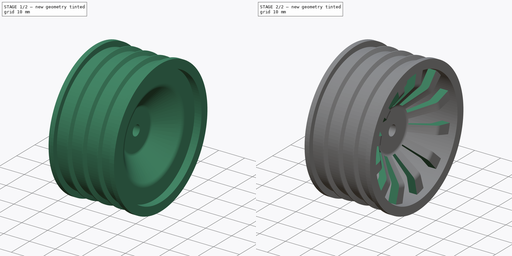
[diagram: build sequence overview — one tinted view per stage of 2, left to right]
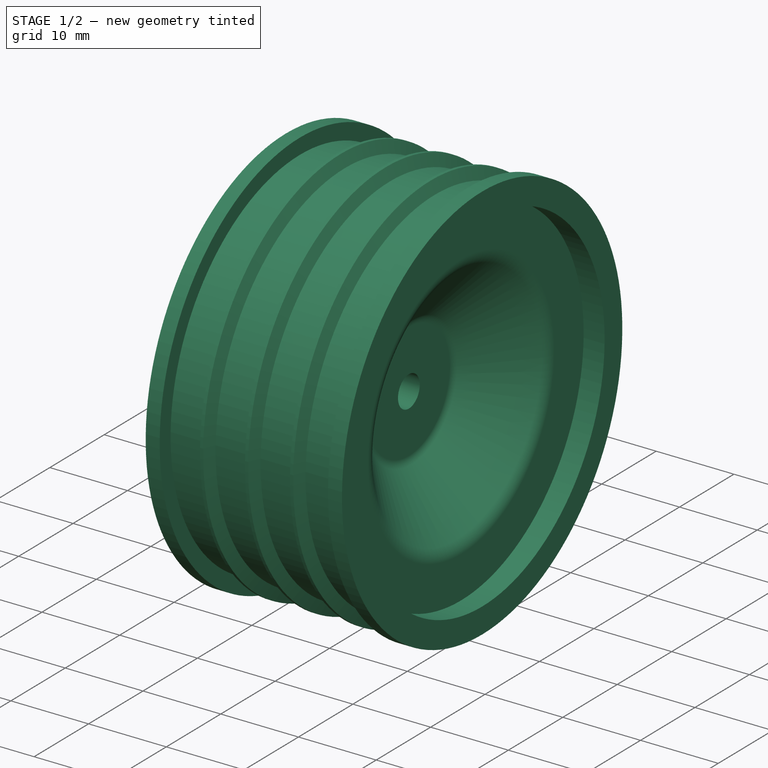
[diagram: stage 1 of 2 — iso view after this stage's code; geometry added in this stage tinted green]
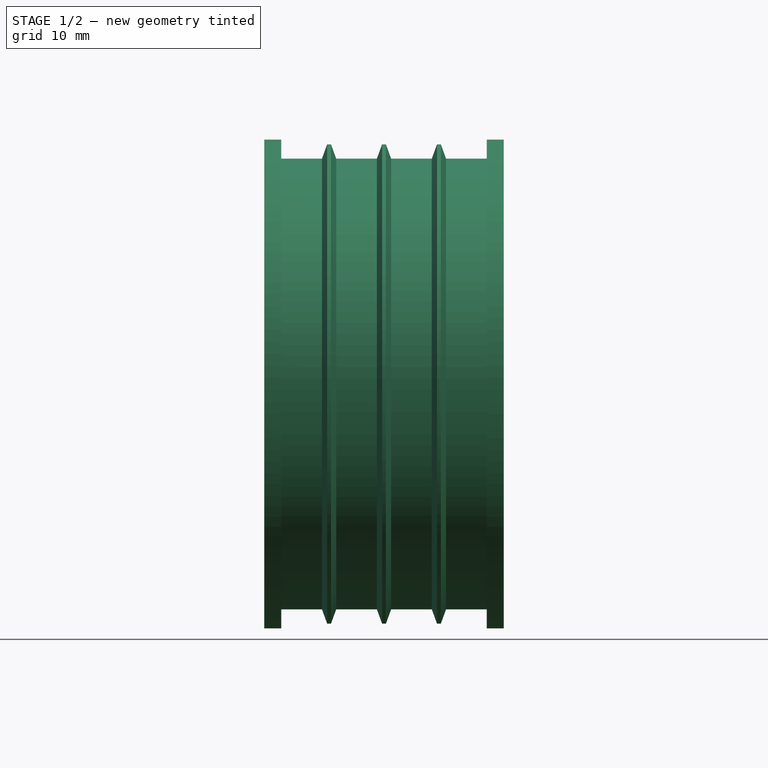
[diagram: stage 1 of 2 — front view after this stage's code; geometry added in this stage tinted green]
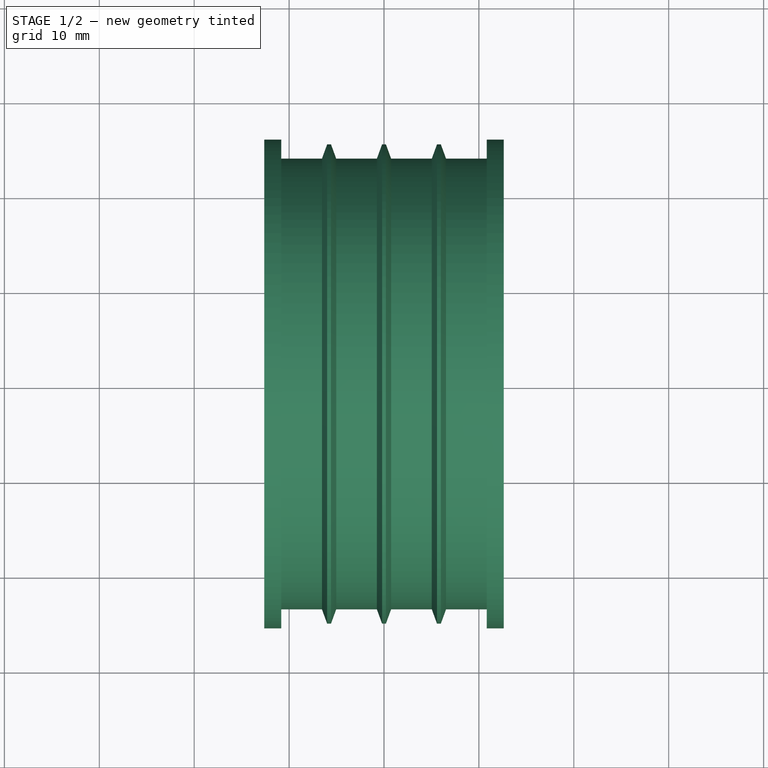
[diagram: stage 1 of 2 — top view after this stage's code; geometry added in this stage tinted green]
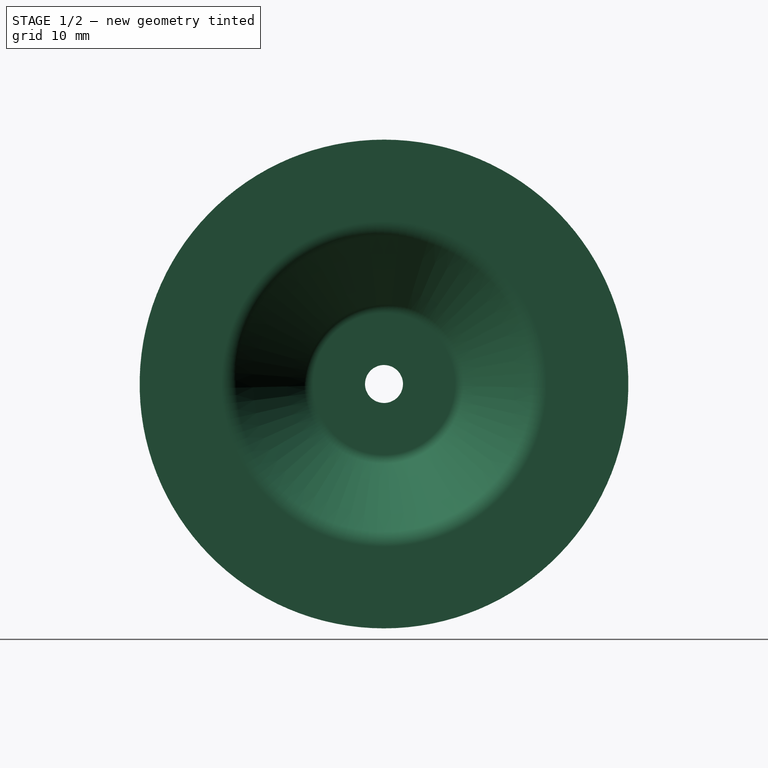
[diagram: stage 1 of 2 — right view after this stage's code; geometry added in this stage tinted green]
FCSTD DOCUMENT  (FreeCAD 1.0R39109 (Git))
Label: ring
License: All rights reserved
LicenseURL: http://en.wikipedia.org/wiki/All_rights_reserved
objects: Sketcher::SketchObject×3, PartDesign::Pocket×2, PartDesign::Revolution×1, PartDesign::PolarPattern×1, PartDesign::Body×1
note: 18 computed .brp shape members not serialized (recipe doc carries the construction recipe); baked Part::Feature solids carry a one-line shape summary decoded from their .brp

FEATURE [Sketcher::SketchObject] Sketch
  ArcFitTolerance = 1e-06
  AttachmentSupport = -> [XZ_Plane]
  FullyConstrained = true
  MakeInternals = false
  MapMode = 5
  Placement = pos=(0,0,0) rot=(1,0,0;1.5708rad)
  sketch-geometry (41):
    g0: LineSegment StartX=-3.2 StartY=8 StartZ=0 EndX=0.8 EndY=8 EndZ=0
    g1: LineSegment StartX=2.06158 StartY=8.68857 StartZ=0 EndX=6.52763 EndY=15.6322 EndZ=0
    g2: LineSegment StartX=6.925 StartY=16.9846 StartZ=0 EndX=6.925 EndY=22.5 EndZ=0
    g3: LineSegment StartX=6.925 StartY=22.5 StartZ=0 EndX=-12.625 EndY=22.5 EndZ=0
    g4: LineSegment StartX=-12.625 StartY=22.5 StartZ=0 EndX=-12.625 EndY=25.75 EndZ=0
    g5: LineSegment StartX=-12.625 StartY=25.75 StartZ=0 EndX=-10.825 EndY=25.75 EndZ=0
    g6: LineSegment StartX=-10.825 StartY=25.75 StartZ=0 EndX=-10.825 EndY=23.75 EndZ=0
    g7: LineSegment StartX=-10.825 StartY=23.75 StartZ=0 EndX=-6.5375 EndY=23.75 EndZ=0
    g8: LineSegment StartX=-6.5375 StartY=23.75 StartZ=0 EndX=-5.99154 EndY=25.25 EndZ=0
    g9: LineSegment StartX=-5.99154 StartY=25.25 StartZ=0 EndX=-5.58346 EndY=25.25 EndZ=0
    g10: LineSegment StartX=-5.58346 StartY=25.25 StartZ=0 EndX=-5.0375 EndY=23.75 EndZ=0
    g11: LineSegment StartX=-5.0375 StartY=23.75 StartZ=0 EndX=-0.75 EndY=23.75 EndZ=0
    g12: LineSegment StartX=-0.75 StartY=23.75 StartZ=0 EndX=-0.204045 EndY=25.25 EndZ=0
    g13: LineSegment StartX=-0.204045 StartY=25.25 StartZ=0 EndX=0.204045 EndY=25.25 EndZ=0
    g14: LineSegment StartX=0.204045 StartY=25.25 StartZ=0 EndX=0.75 EndY=23.75 EndZ=0
    g15: LineSegment StartX=0.75 StartY=23.75 StartZ=0 EndX=5.0375 EndY=23.75 EndZ=0
    g16: LineSegment StartX=5.0375 StartY=23.75 StartZ=0 EndX=5.58346 EndY=25.25 EndZ=0
    g17: LineSegment StartX=5.58346 StartY=25.25 StartZ=0 EndX=5.99154 EndY=25.25 EndZ=0
    g18: LineSegment StartX=5.99154 StartY=25.25 StartZ=0 EndX=6.5375 EndY=23.75 EndZ=0
    g19: LineSegment StartX=6.5375 StartY=23.75 StartZ=0 EndX=10.825 EndY=23.75 EndZ=0
    g20: LineSegment StartX=10.825 StartY=23.75 StartZ=0 EndX=10.825 EndY=25.75 EndZ=0
    g21: LineSegment StartX=10.825 StartY=25.75 StartZ=0 EndX=12.625 EndY=25.75 EndZ=0
    g22: LineSegment StartX=12.625 StartY=25.75 StartZ=0 EndX=12.625 EndY=22.5 EndZ=0
    g23: LineSegment StartX=12.625 StartY=22.5 StartZ=0 EndX=9.925 EndY=22.5 EndZ=0
    g24: LineSegment StartX=9.925 StartY=22.5 StartZ=0 EndX=9.925 EndY=17.1398 EndZ=0
    g25: LineSegment StartX=3.2 StartY=2 StartZ=0 EndX=-3.2 EndY=2 EndZ=0
    g26: LineSegment StartX=-3.2 StartY=2 StartZ=0 EndX=-3.2 EndY=8 EndZ=0
    g27: LineSegment StartX=9.36277 StartY=15.5603 StartZ=0 EndX=3.53734 EndY=8.41384 EndZ=0
    g28: LineSegment StartX=3.2 StartY=7.46609 StartZ=0 EndX=3.2 EndY=2 EndZ=0
    g29: ArcOfCircle CenterX=4.7 CenterY=7.46609 CenterZ=0 NormalX=0 NormalY=0 NormalZ=1 AngleXU=0 Radius=1.5 StartAngle=2.45768 EndAngle=3.14159
    g30: GeomPoint [constr] X=3.2 Y=8 Z=0
    g31: ArcOfCircle CenterX=7.425 CenterY=17.1398 CenterZ=0 NormalX=0 NormalY=0 NormalZ=1 AngleXU=0 Radius=2.5 StartAngle=5.59927 EndAngle=6.28319
    g32: GeomPoint [constr] X=9.925 Y=16.25 Z=0
    g33: ArcOfCircle CenterX=4.425 CenterY=16.9846 CenterZ=0 NormalX=0 NormalY=0 NormalZ=1 AngleXU=0 Radius=2.5 StartAngle=5.71161 EndAngle=6.28319
    g34: GeomPoint [constr] X=6.925 Y=16.25 Z=0
    g35: ArcOfCircle CenterX=0.8 CenterY=9.5 CenterZ=0 NormalX=0 NormalY=0 NormalZ=1 AngleXU=0 Radius=1.5 StartAngle=4.71239 EndAngle=5.71161
    g36: GeomPoint [constr] X=1.6187 Y=8 Z=0
    g37: LineSegment [constr] StartX=-12.625 StartY=25.75 StartZ=0 EndX=12.625 EndY=25.75 EndZ=0
    g38: GeomPoint [constr] X=0 Y=25.75 Z=0
    g39: LineSegment [constr] StartX=3.53734 StartY=8.41384 StartZ=0 EndX=2.45325 EndY=9.29753 EndZ=0
    g40: GeomPoint [constr] X=0 Y=2 Z=0
  constraints (110):
    c: Coincident(g2,g3)
    c: Horizontal(g3)
    c: Coincident(g3,g4)
    c: Coincident(g4,g5)
    c: Horizontal(g5)
    c: Coincident(g5,g6)
    c: Coincident(g6,g7)
    c: Coincident(g7,g8)
    c: Coincident(g8,g9)
    c: Horizontal(g9)
    c: Coincident(g9,g10)
    c: Coincident(g10,g11)
    c: Coincident(g11,g12)
    c: Coincident(g12,g13)
    c: Horizontal(g13)
    c: Coincident(g13,g14)
    c: Coincident(g14,g15)
    c: Horizontal(g15)
    c: Coincident(g15,g16)
    c: Coincident(g16,g17)
    c: Horizontal(g17)
    c: Coincident(g17,g18)
    c: Coincident(g18,g19)
    c: Horizontal(g19)
    c: Coincident(g19,g20)
    c: Coincident(g20,g21)
    c: Coincident(g21,g22)
    c: Coincident(g22,g23)
    c: Coincident(g23,g24)
    c: Coincident(g25,g26)
    c: Coincident(g26,g0)
    c: Vertical(g26)
    c: Equal(g7,g11)
    c: Equal(g11,g15)
    c: Equal(g15,g19)
    c: Horizontal(g11)
    c: Horizontal(g7,g10)
    c: Horizontal(g11,g14)
    c: Horizontal(g15,g18)
    c: Equal(g17,g13)
    c: Equal(g13,g9)
    c: Angle(g11,g10) = 1.91986
    c: Angle(g8,g7) = 1.91986
    c: Horizontal(g7)
    c: Horizontal(g9,g12)
    c: Horizontal(g13,g16)
    c: Equal(g16,g10)
    c: Equal(g12,g8)
    c: Equal(g14,g12)
    c: Equal(g16,g18)
    c: Horizontal(g21)
    c: Horizontal(g5,g20)
    c: Vertical(g20)
    c: Vertical(g4)
    c: DistanceY(g-1,g4) = 25.75
    c: Equal(g5,g21)
    c: Vertical(g6)
    c: Vertical(g22)
    c: Horizontal(g23)
    c: Horizontal(g23,g2)
    c: DistanceY(g22,g22) = 3.25
    c: DistanceX(g21,g21) = 1.8
    c: DistanceX(g11,g14) = 1.5
    c: DistanceX(g23,g22) = 2.7
    c: Vertical(g24)
    c: Horizontal(g25)
    c: Horizontal(g0)
    c: DistanceY(g0) = 8
    c: DistanceY(g25) = 2
    c: DistanceY(g32,g24) = 6.25
    c: Coincident(g28,g25)
    c: Vertical(g28)
    c: Vertical(g2)
    c: DistanceX(g2,g23) = 3
    c: Horizontal(g30,g36)
    c: PointOnObject(g30,g27)
    c: PointOnObject(g30,g28)
    c: Tangent(g27,g29) = -1.5708
    c: Tangent(g28,g29) = -1.5708
    c: PointOnObject(g32,g24)
    c: PointOnObject(g32,g27)
    c: Tangent(g24,g31) = 1.5708
    c: Tangent(g27,g31) = 1.5708
    c: PointOnObject(g34,g1)
    c: PointOnObject(g34,g2)
    c: Tangent(g1,g33) = -1.5708
    c: Tangent(g2,g33) = -1.5708
    c: Radius(g33) = 2.5
    c: Radius(g31) = 2.5
    c: Radius(g29) = 1.5
    c: PointOnObject(g36,g0)
    c: PointOnObject(g36,g1)
    c: Tangent(g0,g35) = -1.5708
    c: Tangent(g1,g35) = -1.5708
    c: Radius(g35) = 1.5
    c: DistanceX(g0,g0) = 4
    c: Coincident(g37,g4)
    c: Coincident(g37,g21)
    c: Symmetric(g37,g37,g38)
    c: PointOnObject(g38,g-2)
    c: Coincident(g39,g27)
    c: PointOnObject(g39,g1)
    c: Angle(g27,g39) = 1.5708
    c: DistanceX(g25,g25) = 6.4
    c: Symmetric(g25,g25,g40)
    c: PointOnObject(g40,g-2)
    c: DistanceX(g37,g37) = 25.25
    c: Horizontal(g34,g32)
    c: DistanceY(g6,g6) = 2
    c: DistanceY(g10,g9) = 1.5
FEATURE [PartDesign::Revolution] Revolution  label="BaseRevolution"
  Angle = 360
  Angle2 = 60
  Axis = (1,0,0)
  Base = (0,0,0)
  Placement = pos=(0,0,0) rot=(1,0,0;1.5708rad)
  Profile = -> Sketch
  ReferenceAxis = -> Sketch [H_Axis]
  Refine = true
  Suppressed = false
  Type = 0
FEATURE [Sketcher::SketchObject] Sketch001
  ArcFitTolerance = 1e-06
  AttachmentSupport = -> [Revolution]
  FullyConstrained = true
  MakeInternals = false
  MapMode = 5
  Placement = pos=(-3.2,0,0) rot=(0.707107,0,-0.707107;3.14159rad)
  sketch-geometry (8):
    g0: LineSegment StartX=6.5 StartY=3.75278 StartZ=0 EndX=0 EndY=7.50555 EndZ=0
    g1: LineSegment StartX=0 StartY=7.50555 StartZ=0 EndX=-6.5 EndY=3.75278 EndZ=0
    g2: LineSegment StartX=-6.5 StartY=3.75278 StartZ=0 EndX=-6.5 EndY=-3.75278 EndZ=0
    g3: LineSegment StartX=-6.5 StartY=-3.75278 StartZ=0 EndX=-1.99e-13 EndY=-7.50555 EndZ=0
    g4: LineSegment StartX=-1.99e-13 StartY=-7.50555 StartZ=0 EndX=6.5 EndY=-3.75278 EndZ=0
    g5: LineSegment StartX=6.5 StartY=-3.75278 StartZ=0 EndX=6.5 EndY=3.75278 EndZ=0
    g6: Circle [constr] CenterX=0 CenterY=0 CenterZ=0 NormalX=0 NormalY=0 NormalZ=1 AngleXU=0 Radius=7.50555
    g7: LineSegment [constr] StartX=-6.5 StartY=-3.75278 StartZ=0 EndX=6.5 EndY=-3.75278 EndZ=0
  constraints (18):
    c: Coincident(g0,g1)
    c: Coincident(g1,g2)
    c: Coincident(g2,g3)
    c: Coincident(g3,g4)
    c: Coincident(g4,g5)
    c: Coincident(g5,g0)
    c: Equal(g0, g1-g5) x5
    c: PointOnObject(g0,g6)
    c: PointOnObject(g1,g6)
    c: PointOnObject(g2,g6)
    c: PointOnObject(g3,g6)
    c: PointOnObject(g4,g6)
    c: PointOnObject(g5,g6)
    c: Coincident(g6,g-1)
    c: PointOnObject(g0,g-2)
    c: Coincident(g7,g2)
    c: Coincident(g7,g4)
    c: DistanceX(g7,g7) = 13
FEATURE [PartDesign::Pocket] Pocket  label="HexPocket"
  BaseFeature = -> Revolution
  Direction = (1,0,2e-16)
  Length = 4
  Length2 = 5
  Placement = pos=(0,0,0) rot=(1,0,0;1.5708rad)
  Profile = -> Sketch001
  ReferenceAxis = -> Sketch001 [N_Axis]
  Refine = true
  Suppressed = false
  Type = 0
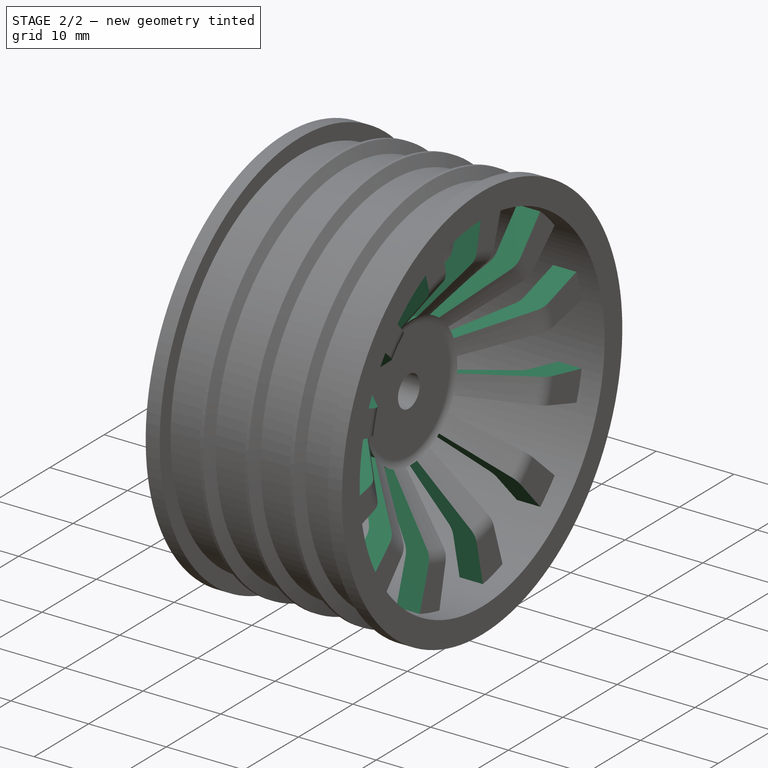
[diagram: stage 2 of 2 — iso view after this stage's code; geometry added in this stage tinted green]
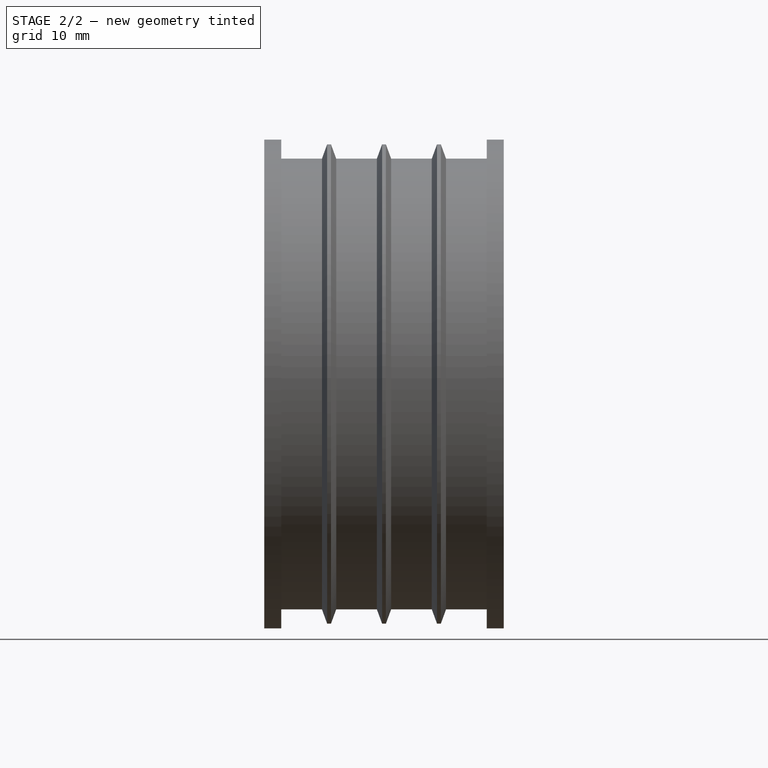
[diagram: stage 2 of 2 — front view after this stage's code; geometry added in this stage tinted green]
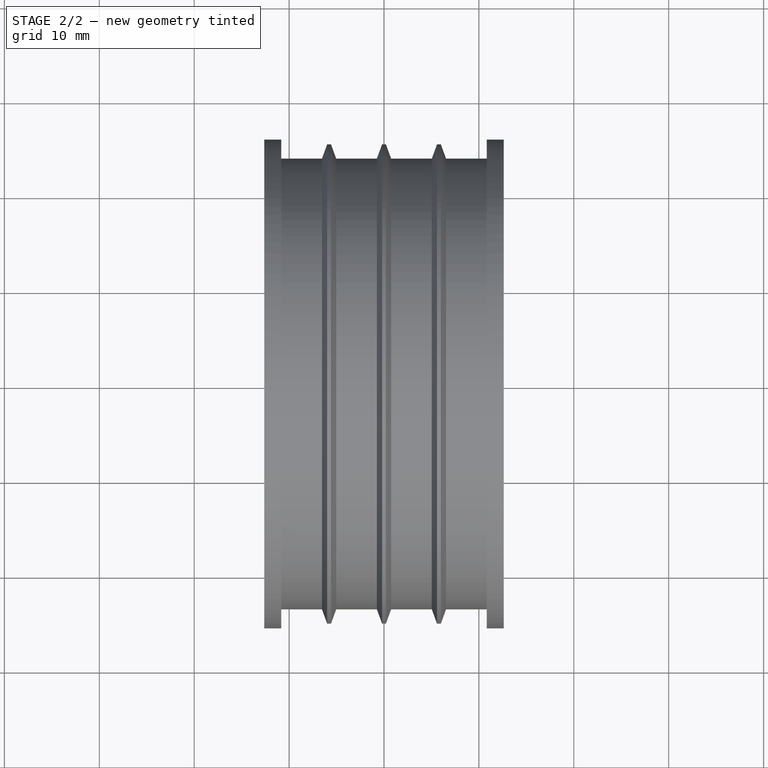
[diagram: stage 2 of 2 — top view after this stage's code; geometry added in this stage tinted green]
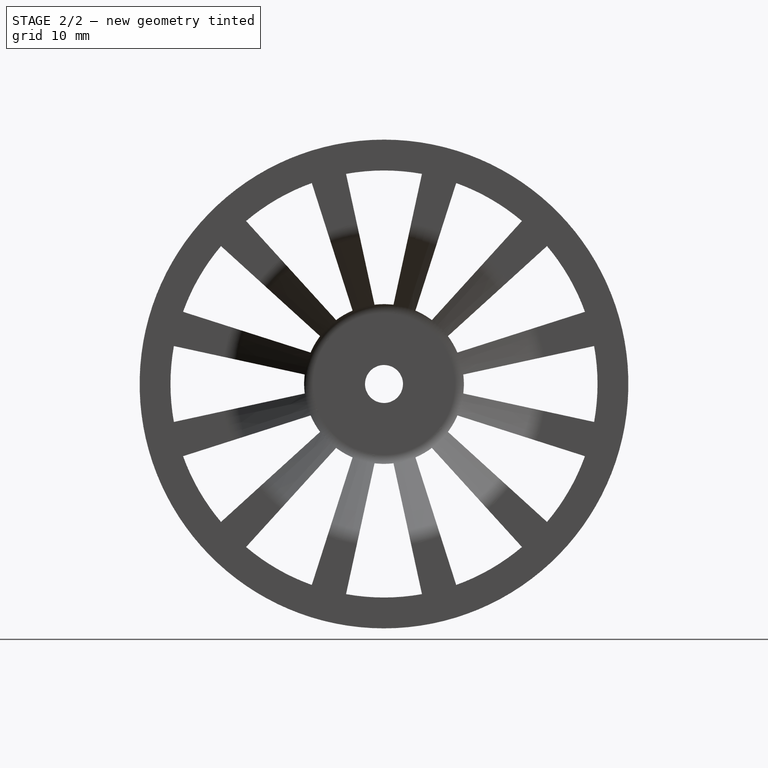
[diagram: stage 2 of 2 — right view after this stage's code; geometry added in this stage tinted green]
FEATURE [Sketcher::SketchObject] Sketch002
  ArcFitTolerance = 1e-06
  AttachmentSupport = -> [Pocket]
  ExternalGeometry = -> [Pocket]
  FullyConstrained = false
  MakeInternals = false
  MapMode = 5
  Placement = pos=(12.625,0,0) rot=(0.707107,0,0.707107;3.14159rad)
  sketch-geometry (4):
    g0: LineSegment StartX=8.3542 StartY=1 StartZ=0 EndX=22.1416 EndY=4 EndZ=0
    g1: LineSegment StartX=22.1416 StartY=-4 StartZ=0 EndX=8.3542 EndY=-1 EndZ=0
    g2: ArcOfCircle CenterX=-6e-16 CenterY=-1.6e-15 CenterZ=0 NormalX=0 NormalY=0 NormalZ=1 AngleXU=0 Radius=8.41384 StartAngle=6.16405 EndAngle=6.40232
    g3: ArcOfCircle CenterX=-6e-16 CenterY=-1.6e-15 CenterZ=0 NormalX=0 NormalY=0 NormalZ=1 AngleXU=0 Radius=22.5 StartAngle=6.10446 EndAngle=6.46191
  constraints (10):
    c: PointOnObject(g0,g-3)
    c: Coincident(g2,g0)
    c: Coincident(g2,g1)
    c: Coincident(g3,g2)
    c: Coincident(g3,g0)
    c: Coincident(g3,g1)
    c: Symmetric(g1,g0,g-1)
    c: Distance(g0,g1) = 8
    c: Equal(g2,g-4)
    c: PointOnObject(g0,g-4)
FEATURE [PartDesign::Pocket] Pocket001  label="RinPocket"
  BaseFeature = -> Pocket
  Direction = (-1,0,2e-16)
  Length = 5
  Length2 = 5
  Placement = pos=(0,0,0) rot=(1,0,0;1.5708rad)
  Profile = -> Sketch002
  ReferenceAxis = -> Sketch002 [N_Axis]
  Refine = true
  Suppressed = false
  Type = 1
FEATURE [PartDesign::PolarPattern] PolarPattern  label="RinPattern"
  Angle = 360
  Axis = -> Sketch002 [N_Axis]
  BaseFeature = -> Pocket001
  Mode = 0
  Occurrences = 12
  Offset = 120
  Originals = -> [Pocket001]
  Placement = pos=(0,0,0) rot=(1,0,0;1.5708rad)
  Refine = true
  Suppressed = false
  TransformMode = 0
FEATURE [PartDesign::Body] Body  label="Ring"
  AllowCompound = false
  Group = -> [Sketch,Revolution,Sketch001,Pocket,Sketch002,Pocket001,PolarPattern]
  Origin = -> Origin
  Tip = -> PolarPattern
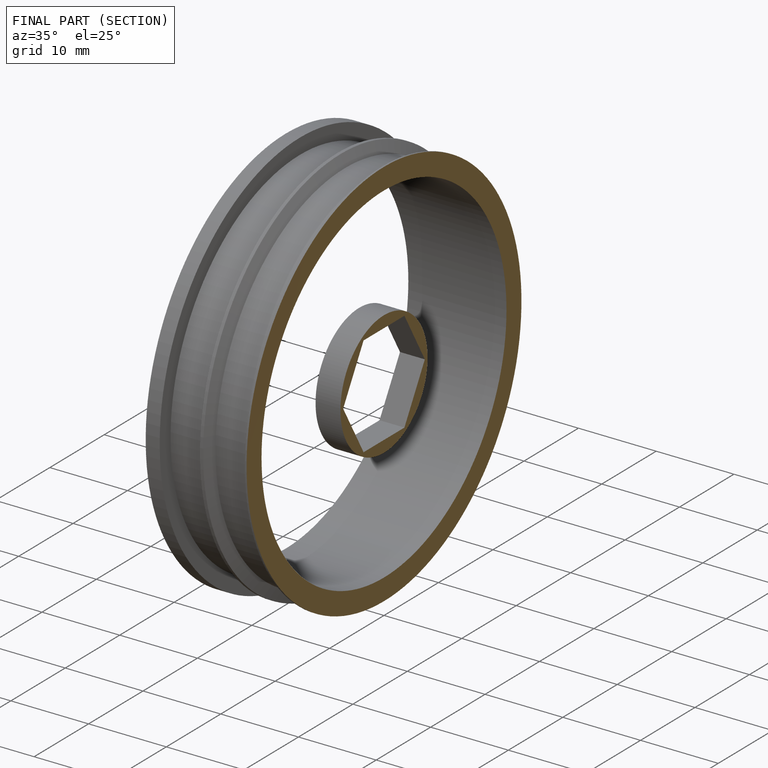
[diagram: finished part — half-section view (interior)]
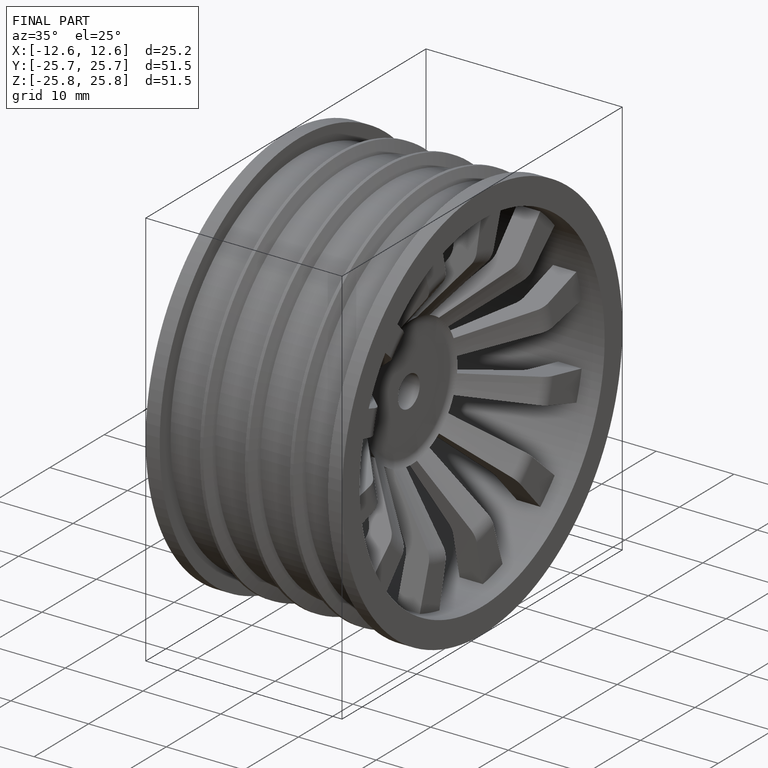
[diagram: finished part — iso view with bounding-box wireframe]
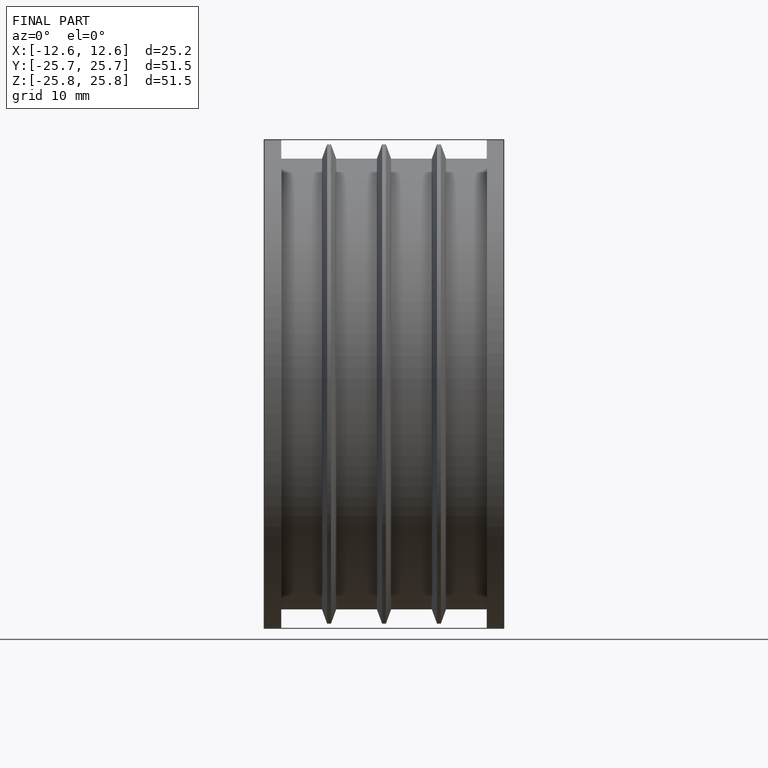
[diagram: finished part — front view with bounding-box wireframe]
